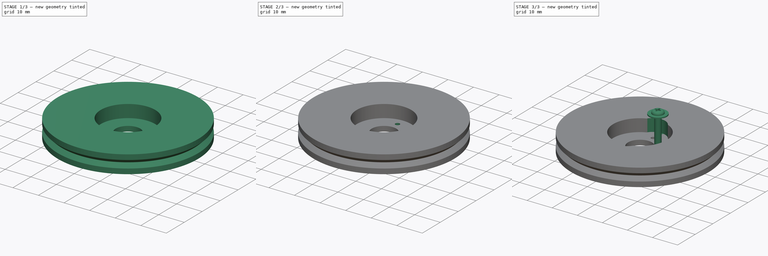
[diagram: build sequence overview — one tinted view per stage of 3, left to right]
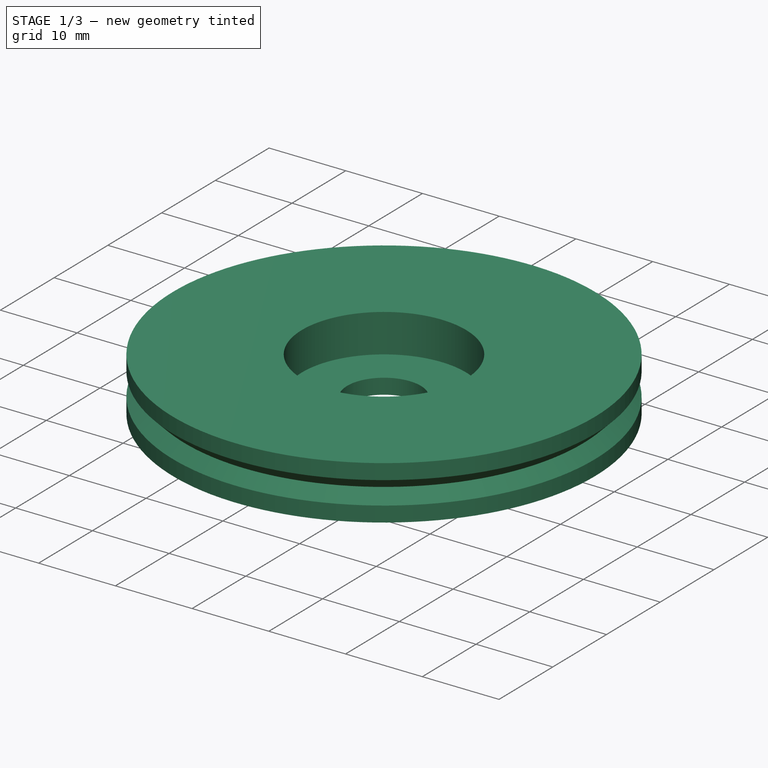
[diagram: stage 1 of 3 — iso view after this stage's code; geometry added in this stage tinted green]
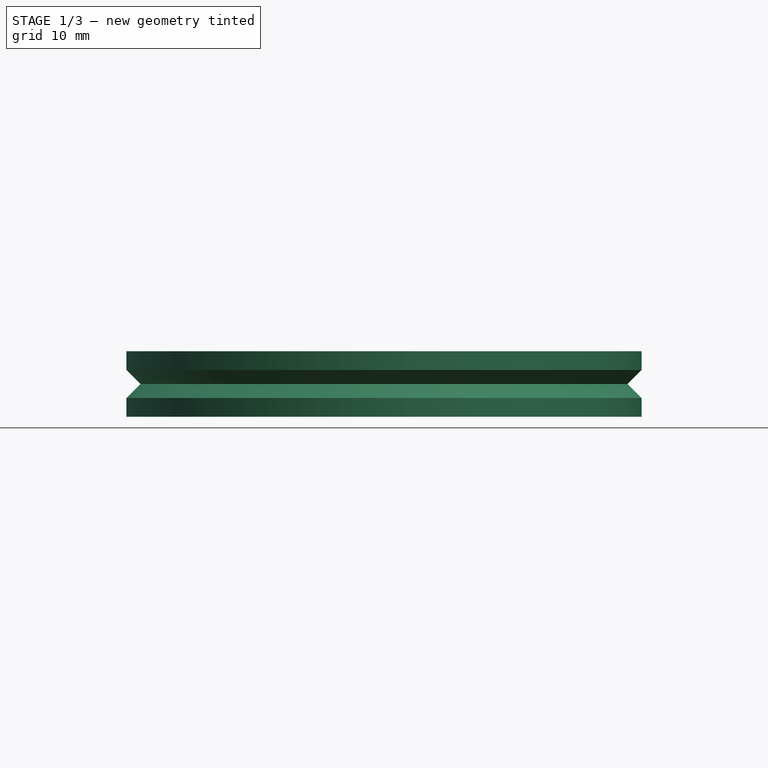
[diagram: stage 1 of 3 — front view after this stage's code; geometry added in this stage tinted green]
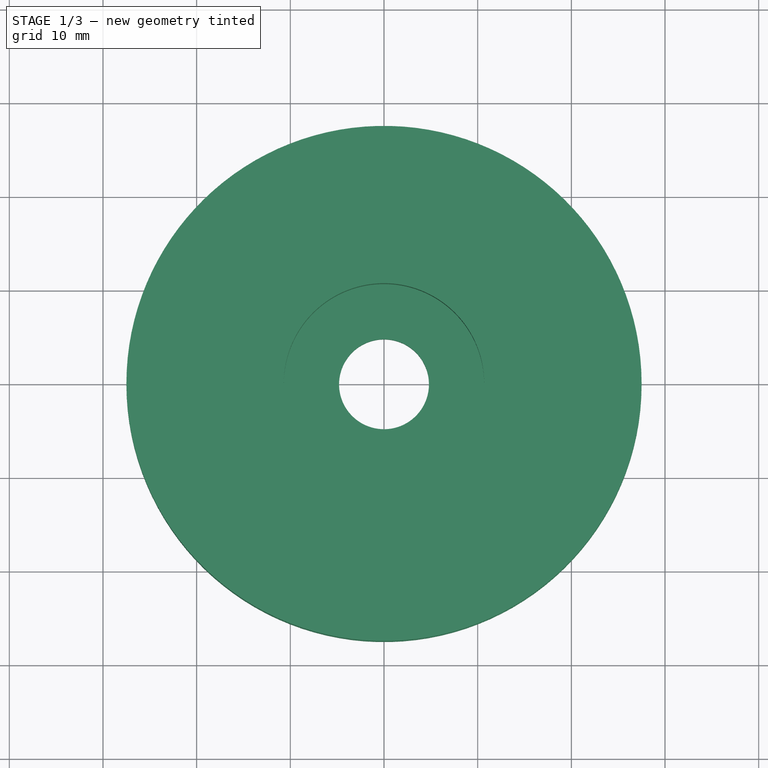
[diagram: stage 1 of 3 — top view after this stage's code; geometry added in this stage tinted green]
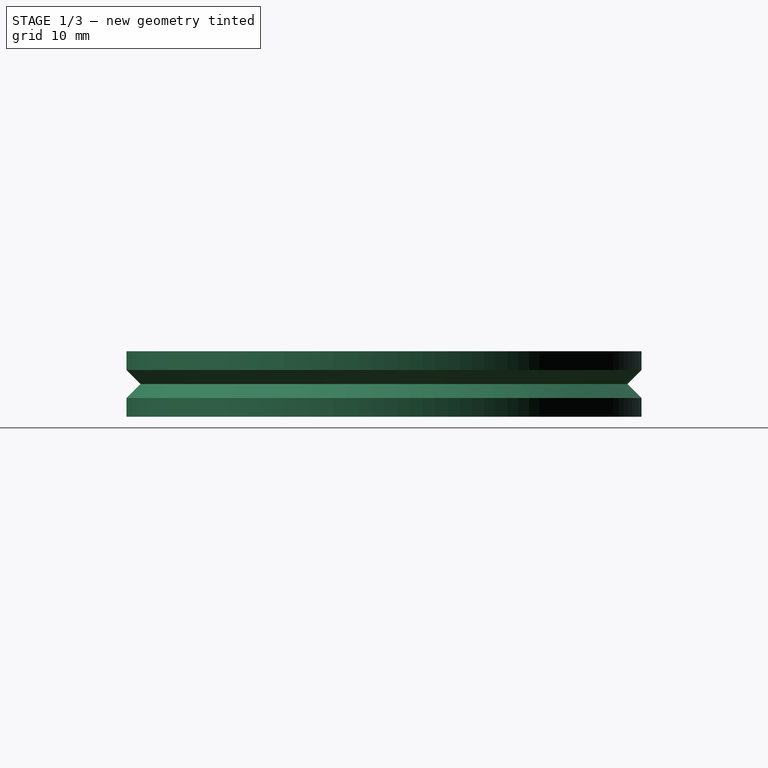
[diagram: stage 1 of 3 — right view after this stage's code; geometry added in this stage tinted green]
FCSTD DOCUMENT  (FreeCAD 0.14R3702 (Git))
Label: Renacuajo-wheel-small-rounded-horn
License: CC-BY 3.0
LicenseURL: http://creativecommons.org/licenses/by/3.0/
objects: Sketcher::SketchObject×5, PartDesign::Pocket×4, PartDesign::PolarPattern×2, PartDesign::Revolution×1, Part::Chamfer×1, Part::Feature×1
note: 19 computed .brp shape members not serialized (recipe doc carries the construction recipe); baked Part::Feature solids carry a one-line shape summary decoded from their .brp

FEATURE [Sketcher::SketchObject] Sketch  label="wheel-generic-sketch"
  Placement = pos=(0,0,0) rot=(1,0,0;1.5708rad)
  sketch-geometry (7):
    g0: LineSegment StartX=0 StartY=-3.5 StartZ=0 EndX=0 EndY=3.5 EndZ=0
    g1: LineSegment StartX=0 StartY=3.5 StartZ=0 EndX=27.5 EndY=3.5 EndZ=0
    g2: LineSegment StartX=27.5 StartY=3.5 StartZ=0 EndX=27.5 EndY=1.5 EndZ=0
    g3: LineSegment StartX=27.5 StartY=1.5 StartZ=0 EndX=26 EndY=0 EndZ=0
    g4: LineSegment StartX=26 StartY=0 StartZ=0 EndX=27.5 EndY=-1.5 EndZ=0
    g5: LineSegment StartX=27.5 StartY=-1.5 StartZ=0 EndX=27.5 EndY=-3.5 EndZ=0
    g6: LineSegment StartX=27.5 StartY=-3.5 StartZ=0 EndX=0 EndY=-3.5 EndZ=0
  constraints (20):
    c: Vertical(g0)
    c: Coincident(g0,g1)
    c: Horizontal(g1)
    c: Coincident(g1,g2)
    c: Vertical(g2)
    c: Coincident(g2,g3)
    c: Coincident(g3,g4)
    c: Coincident(g4,g5)
    c: Coincident(g5,g6)
    c: Coincident(g6,g0)
    c: Horizontal(g6)
    c: Vertical(g5)
    c: PointOnObject(g0,g-2)
    c: Symmetric(g0,g0,g-1)
    c: PointOnObject(g3,g-1)
    c: Symmetric(g4,g2,g-1)
    c: Angle(g3,g-1) = 2.35619
    c: DistanceY(g4,g2) = 3
    c: DistanceX(g1) = 27.5
    c: DistanceY(g0) = 7
FEATURE [PartDesign::Revolution] Revolution  label="wheel-generic"
  Angle = 360
  Axis = (0,0,1)
  Base = (0,0,0)
  Placement = pos=(0,0,0) rot=(1,0,0;1.5708rad)
  ReferenceAxis = -> Sketch [V_Axis]
  Reversed = true
  Sketch = -> Sketch
FEATURE [Sketcher::SketchObject] Sketch001  label="rounded-horn-sketch"
  Placement = pos=(0,0,3.5) rot=(0,0,1;3.14159rad)
  Support = -> Revolution [Face1]
  sketch-geometry (1):
    g0: Circle CenterX=0 CenterY=0 CenterZ=0 NormalX=0 NormalY=0 NormalZ=1 Radius=10.7
  constraints (2):
    c: Coincident(g0,g-1)
    c: Radius(g0) = 10.7
FEATURE [PartDesign::Pocket] Pocket  label="rounded-horn-pocket"
  Length = 5
  Placement = pos=(0,0,0) rot=(1,0,0;1.5708rad)
  Sketch = -> Sketch001
  Type = 0
FEATURE [Sketcher::SketchObject] Sketch002  label="servo-shaft-drill-sketch"
  Placement = pos=(0,0,-1.5) rot=(0,0,1;3.14159rad)
  Support = -> Pocket [Face5]
  sketch-geometry (1):
    g0: Circle CenterX=0 CenterY=0 CenterZ=0 NormalX=0 NormalY=0 NormalZ=1 Radius=4.8
  constraints (2):
    c: Coincident(g0,g-1)
    c: Radius(g0) = 4.8
FEATURE [PartDesign::Pocket] Pocket001  label="servo-shaft-drill"
  Length = 5
  Placement = pos=(0,0,0) rot=(1,0,0;1.5708rad)
  Sketch = -> Sketch002
  Type = 1
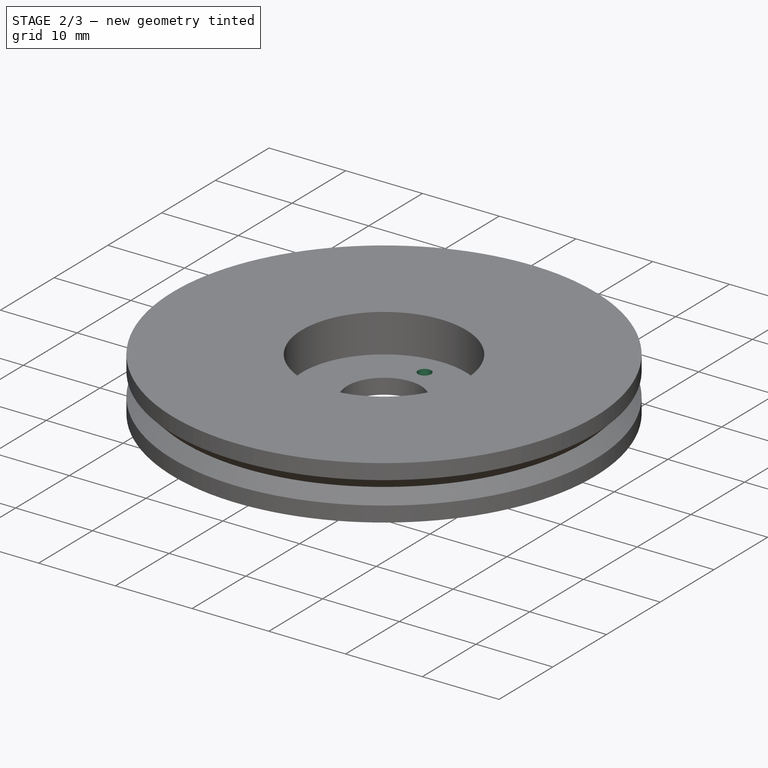
[diagram: stage 2 of 3 — iso view after this stage's code; geometry added in this stage tinted green]
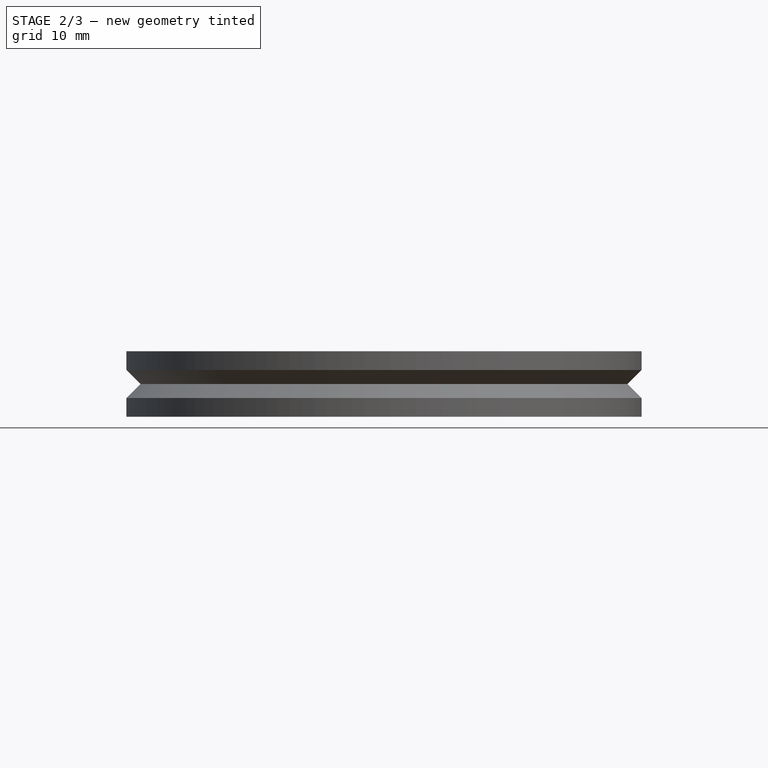
[diagram: stage 2 of 3 — front view after this stage's code; geometry added in this stage tinted green]
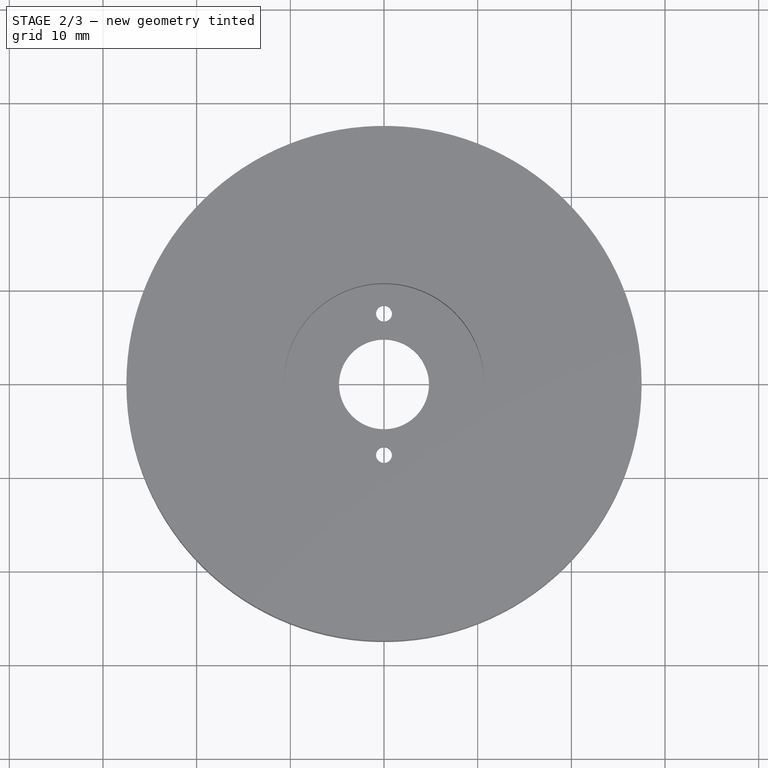
[diagram: stage 2 of 3 — top view after this stage's code; geometry added in this stage tinted green]
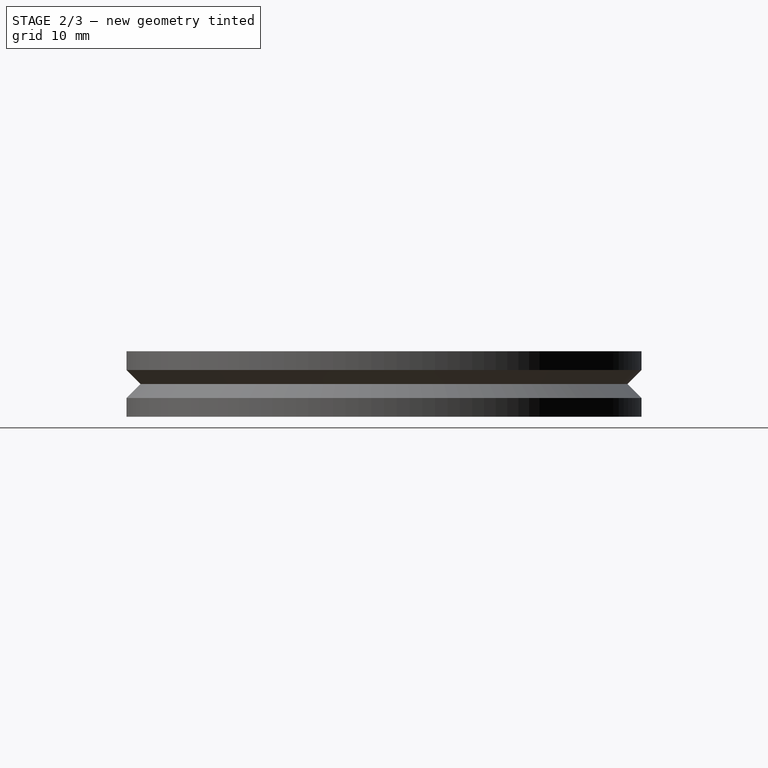
[diagram: stage 2 of 3 — right view after this stage's code; geometry added in this stage tinted green]
FEATURE [Sketcher::SketchObject] Sketch003  label="drills-master-sketch"
  Placement = pos=(0,0,-1.5) rot=(0,0,1;3.14159rad)
  Support = -> Pocket001 [Face5]
  sketch-geometry (2):
    g0: Circle CenterX=0 CenterY=7.55 CenterZ=0 NormalX=0 NormalY=0 NormalZ=1 Radius=0.85
    g1: LineSegment [constr] StartX=0 StartY=7.55 StartZ=0 EndX=0 EndY=0 EndZ=0
  constraints (6):
    c: PointOnObject(g0,g-2)
    c: Radius(g0) = 0.85
    c: Vertical(g1)
    c: Coincident(g1,g0)
    c: Coincident(g1,g-1)
    c: DistanceY(g1) = -7.55
FEATURE [PartDesign::Pocket] Pocket002  label="horn-drill-master"
  Length = 5
  Placement = pos=(0,0,0) rot=(1,0,0;1.5708rad)
  Sketch = -> Sketch003
  Type = 1
FEATURE [PartDesign::PolarPattern] PolarPattern  label="horn-drills"
  Angle = 360
  Axis = -> Sketch003 [N_Axis]
  Occurrences = 2
  Originals = -> [Pocket002]
  Placement = pos=(0,0,0) rot=(1,0,0;1.5708rad)
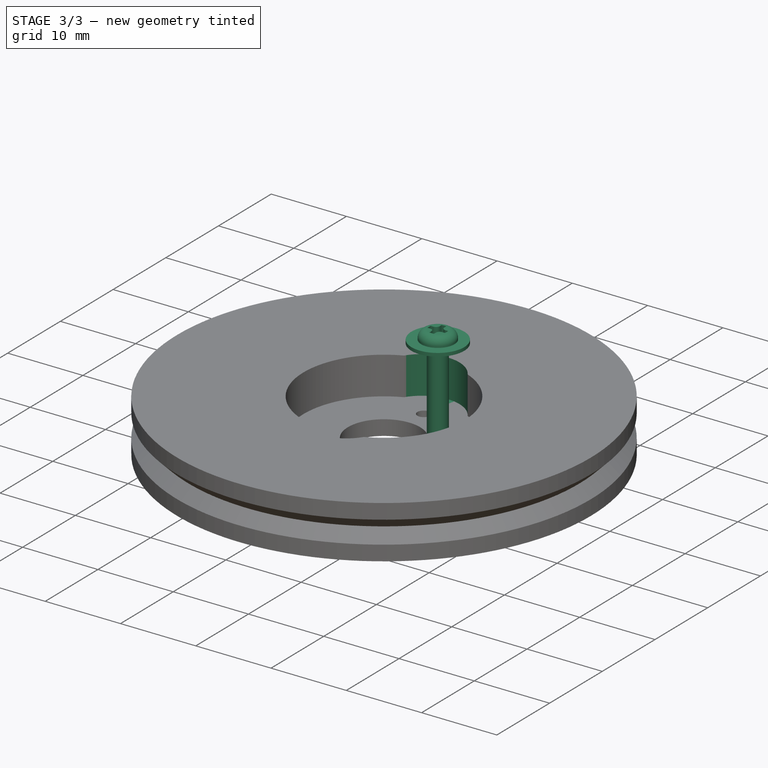
[diagram: stage 3 of 3 — iso view after this stage's code; geometry added in this stage tinted green]
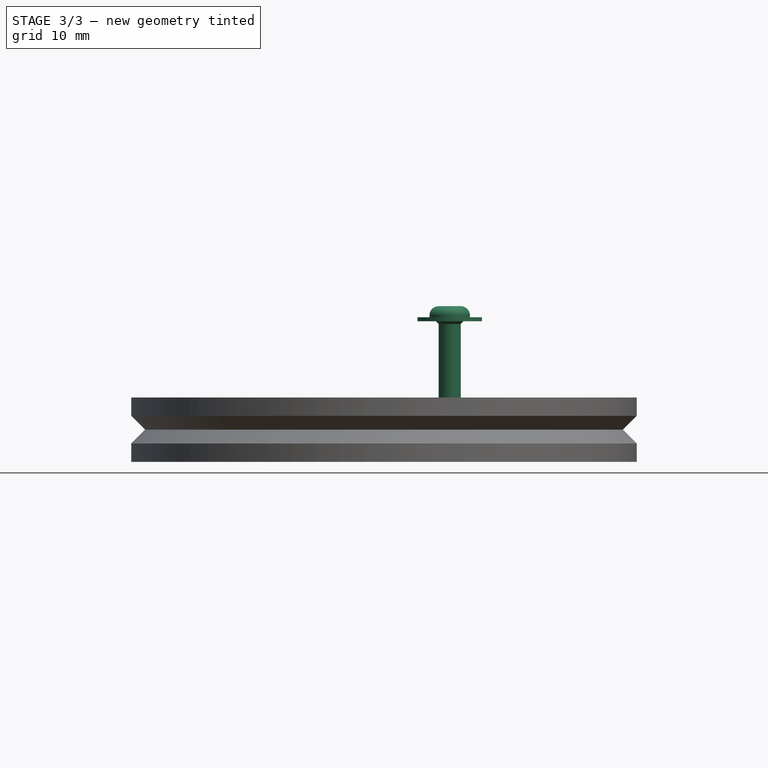
[diagram: stage 3 of 3 — front view after this stage's code; geometry added in this stage tinted green]
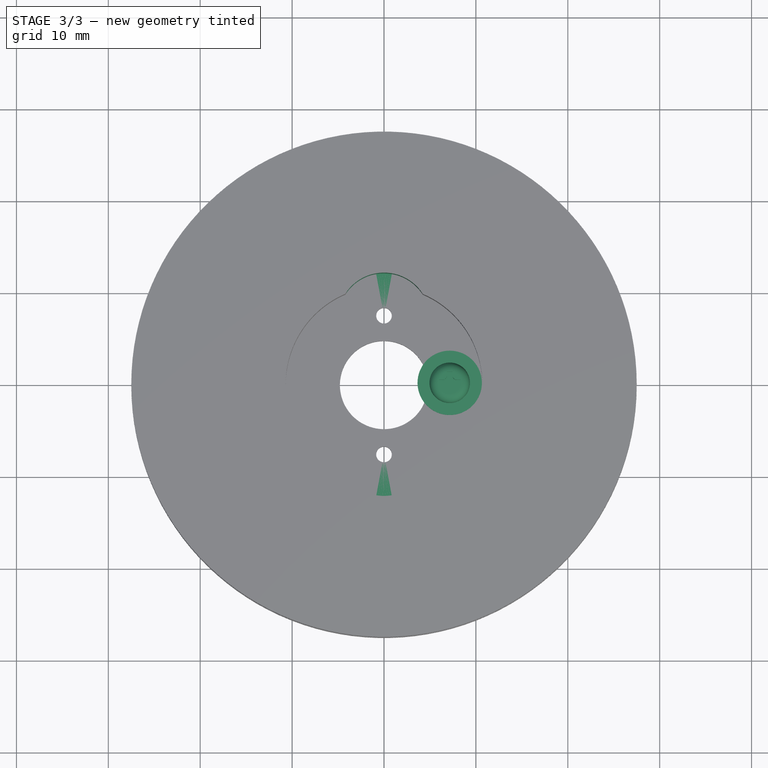
[diagram: stage 3 of 3 — top view after this stage's code; geometry added in this stage tinted green]
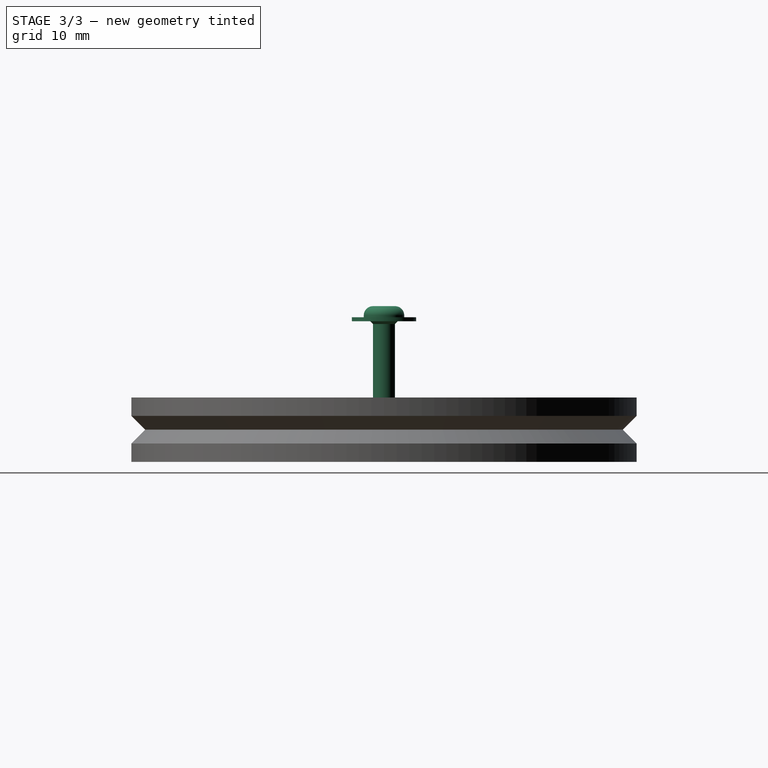
[diagram: stage 3 of 3 — right view after this stage's code; geometry added in this stage tinted green]
FEATURE [Sketcher::SketchObject] Sketch004  label="horn-drills-room-sketch"
  Placement = pos=(0,0,3.5) rot=(0,0,1;3.14159rad)
  Support = -> PolarPattern [Face1]
  sketch-geometry (3):
    g0: Circle [constr] CenterX=0 CenterY=7.15 CenterZ=0 NormalX=0 NormalY=0 NormalZ=1 Radius=3.5
    g1: ArcOfCircle CenterX=0 CenterY=7.15 CenterZ=0 NormalX=0 NormalY=0 NormalZ=1 Radius=5 StartAngle=0 EndAngle=3.14159
    g2: LineSegment StartX=5 StartY=7.15 StartZ=0 EndX=-5 EndY=7.15 EndZ=0
  constraints (9):
    c: PointOnObject(g0,g-2)
    c: DistanceY(g-1,g0) = 7.15
    c: Radius(g0) = 3.5
    c: Coincident(g1,g0)
    c: Radius(g1) = 5
    c: Horizontal(g2)
    c: Coincident(g1,g2)
    c: Coincident(g1,g2)
    c: PointOnObject(g0,g2)
FEATURE [Part::Chamfer] Chamfer  label="final-screw-2"
  Edges = 1 edges r=0.3: [Edge81]
  Placement = pos=(7.15,0,11.8) rot=(0,0,1;0rad)
FEATURE [PartDesign::Pocket] Pocket003  label="horn-drill-room-master"
  Length = 5
  Placement = pos=(0,0,0) rot=(1,0,0;1.5708rad)
  Sketch = -> Sketch004
  Type = 0
FEATURE [PartDesign::PolarPattern] PolarPattern001  label="horn-drills-room"
  Angle = 360
  Axis = -> Sketch004 [N_Axis]
  Occurrences = 2
  Originals = -> [Pocket003]
  Placement = pos=(0,0,0) rot=(1,0,0;1.5708rad)
FEATURE [Part::Feature] PolarPattern002  label="renacuajo-wheel-small-rounded-horn-final"
  Placement = pos=(0,0,0) rot=(1,0,0;1.5708rad)
  shape: bbox 55 x 55 x 7 mm, 15 faces (baked)
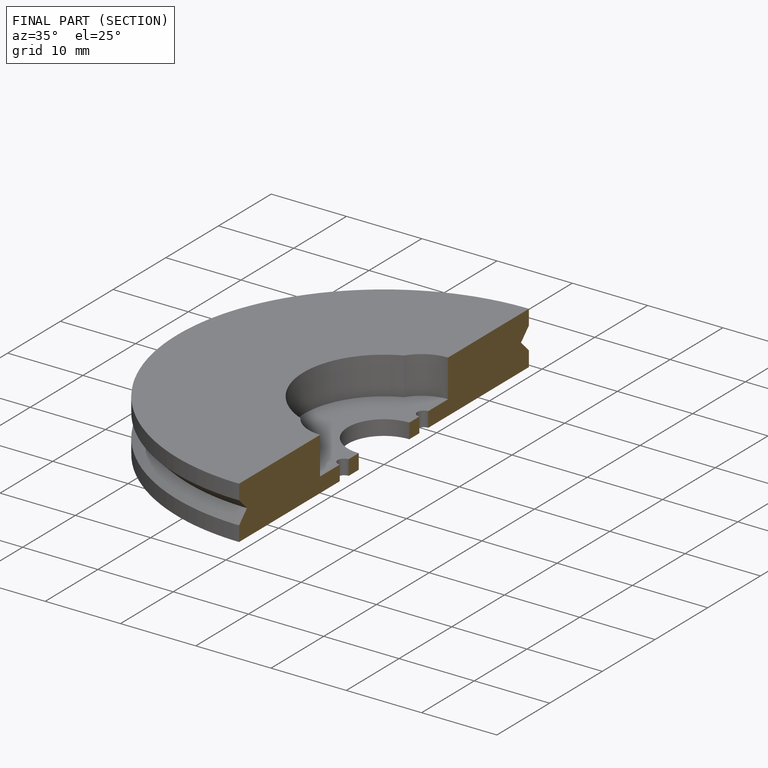
[diagram: finished part — half-section view (interior)]
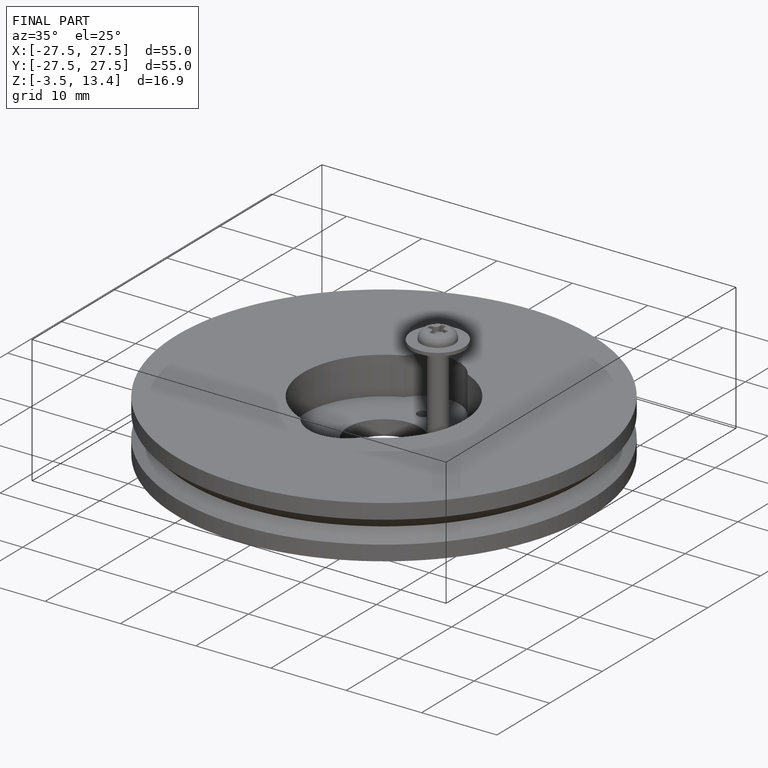
[diagram: finished part — iso view with bounding-box wireframe]
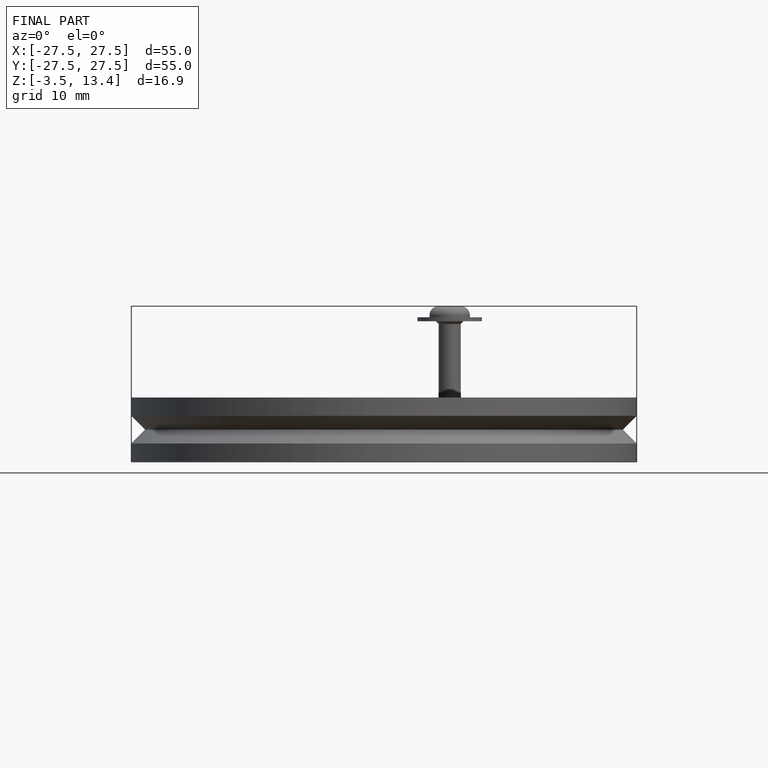
[diagram: finished part — front view with bounding-box wireframe]
